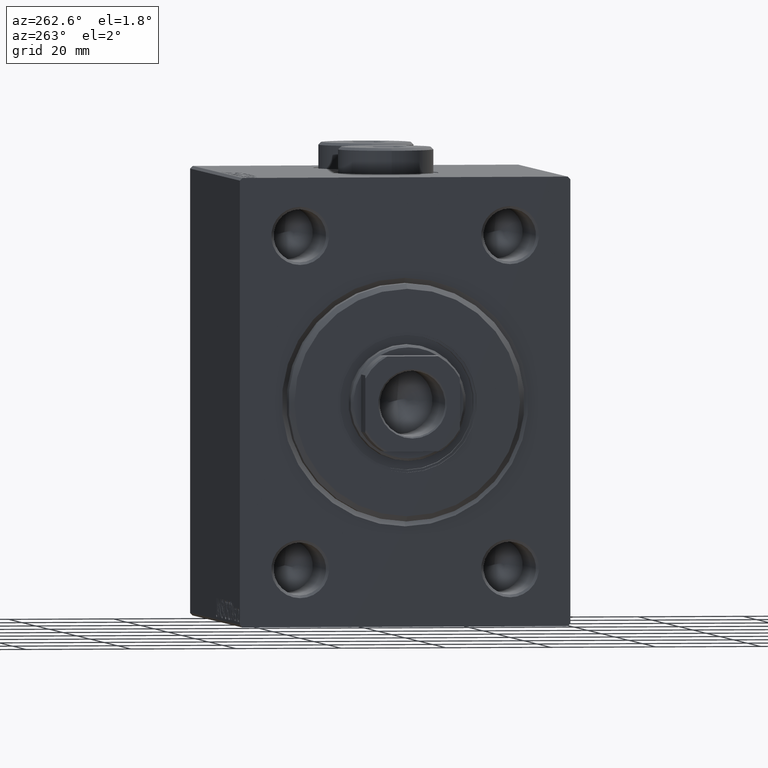
[diagram: clean part render]
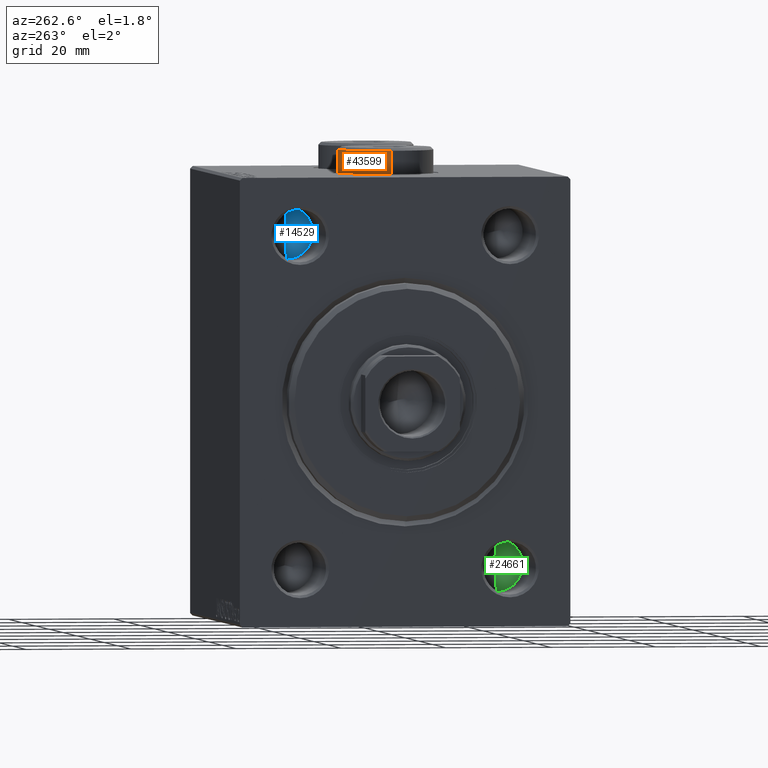
[diagram: same view with three faces highlighted in distinct colors, each labeled with its STEP entity id]
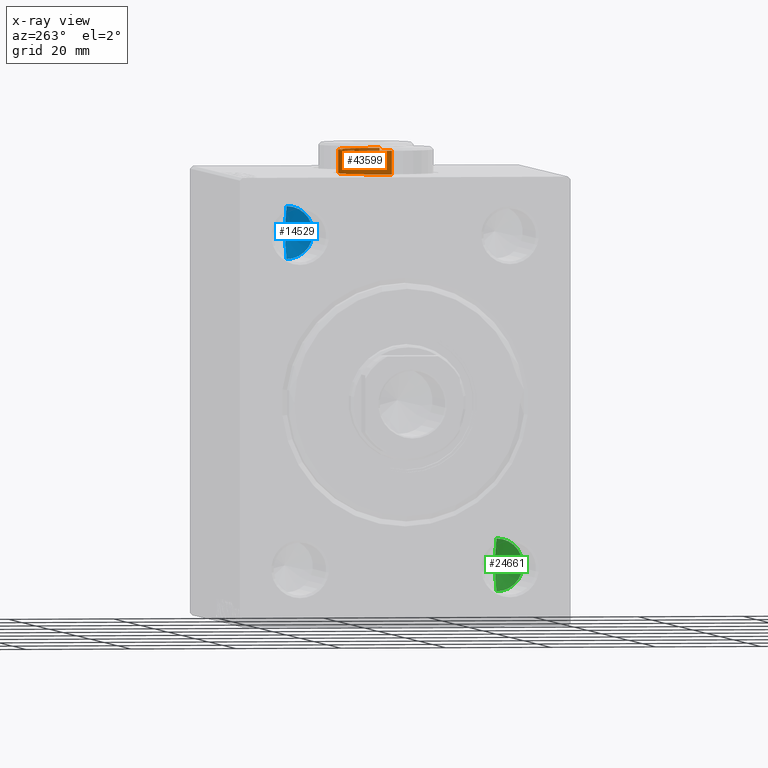
[diagram: x-ray of the same camera — body ghosted, the three highlighted faces saturated]
A machine part, auxiliary view with three faces highlighted in distinct colors.
The next image is the same camera in x-ray (body ghosted, the three faces saturated) — at least one of them is partly hidden behind the body in this view.
Their STEP definitions:

[orange] entity #43599 — the highlighted cylindrical surface (partial cylindrical patch) has radius 9 mm, axis along (-0, -0, -1).
#3591 = CYLINDRICAL_SURFACE ( 'NONE', #41357, 9.000000000000001776 ) ;
#5548 = DIRECTION ( 'NONE',  ( -0.000000000000000000, -0.000000000000000000, -1.000000000000000000 ) ) ;
#5590 = EDGE_CURVE ( 'NONE', #13046, #44027, #32014, .T. ) ;
#8040 = EDGE_CURVE ( 'NONE', #42088, #13046, #15187, .T. ) ;
#9499 = VERTEX_POINT ( 'NONE', #36355 ) ;
#9862 = DIRECTION ( 'NONE',  ( -0.000000000000000000, -0.000000000000000000, -1.000000000000000000 ) ) ;
#10482 = FACE_OUTER_BOUND ( 'NONE', #38473, .T. ) ;
#10524 = LINE ( 'NONE', #31224, #34640 ) ;
#12018 = AXIS2_PLACEMENT_3D ( 'NONE', #35029, #24248, #14118 ) ;
#13046 = VERTEX_POINT ( 'NONE', #31035 ) ;
#14118 = DIRECTION ( 'NONE',  ( 1.000000000000000000, 0.000000000000000000, 0.000000000000000000 ) ) ;
#14151 = CARTESIAN_POINT ( 'NONE',  ( 0.000000000000000000, 0.000000000000000000, 5.000000000000000000 ) ) ;
#15187 = LINE ( 'NONE', #43218, #41615 ) ;
#15690 = CARTESIAN_POINT ( 'NONE',  ( -9.000000000000001776, 0.000000000000000000, 0.000000000000000000 ) ) ;
#16299 = CARTESIAN_POINT ( 'NONE',  ( 9.000000000000001776, 1.102182119232617911E-15, 4.500000000000006217 ) ) ;
#17194 = ORIENTED_EDGE ( 'NONE', *, *, #39518, .F. ) ;
#22353 = ORIENTED_EDGE ( 'NONE', *, *, #8040, .T. ) ;
#24248 = DIRECTION ( 'NONE',  ( 0.000000000000000000, 0.000000000000000000, -1.000000000000000000 ) ) ;
#24732 = DIRECTION ( 'NONE',  ( -1.000000000000000000, 0.000000000000000000, 0.000000000000000000 ) ) ;
#25424 = AXIS2_PLACEMENT_3D ( 'NONE', #27096, #42352, #35470 ) ;
#27096 = CARTESIAN_POINT ( 'NONE',  ( 0.000000000000000000, 0.000000000000000000, 0.000000000000000000 ) ) ;
#28186 = DIRECTION ( 'NONE',  ( -0.000000000000000000, -0.000000000000000000, -1.000000000000000000 ) ) ;
#29380 = EDGE_CURVE ( 'NONE', #9499, #42088, #36217, .T. ) ;
#31035 = CARTESIAN_POINT ( 'NONE',  ( 9.000000000000001776, 1.102182119232617911E-15, 0.000000000000000000 ) ) ;
#31224 = CARTESIAN_POINT ( 'NONE',  ( -9.000000000000001776, 0.000000000000000000, 5.000000000000000000 ) ) ;
#32014 = CIRCLE ( 'NONE', #25424, 9.000000000000001776 ) ;
#32917 = ORIENTED_EDGE ( 'NONE', *, *, #29380, .T. ) ;
#34640 = VECTOR ( 'NONE', #9862, 1000.000000000000000 ) ;
#35029 = CARTESIAN_POINT ( 'NONE',  ( 0.000000000000000000, 0.000000000000000000, 4.500000000000006217 ) ) ;
#35470 = DIRECTION ( 'NONE',  ( 1.000000000000000000, 0.000000000000000000, 0.000000000000000000 ) ) ;
#36217 = CIRCLE ( 'NONE', #12018, 9.000000000000001776 ) ;
#36355 = CARTESIAN_POINT ( 'NONE',  ( -9.000000000000001776, 0.000000000000000000, 4.500000000000006217 ) ) ;
#38473 = EDGE_LOOP ( 'NONE', ( #32917, #22353, #42463, #17194 ) ) ;
#39518 = EDGE_CURVE ( 'NONE', #9499, #44027, #10524, .T. ) ;
#41357 = AXIS2_PLACEMENT_3D ( 'NONE', #14151, #28186, #24732 ) ;
#41615 = VECTOR ( 'NONE', #5548, 1000.000000000000000 ) ;
#42088 = VERTEX_POINT ( 'NONE', #16299 ) ;
#42352 = DIRECTION ( 'NONE',  ( 0.000000000000000000, 0.000000000000000000, 1.000000000000000000 ) ) ;
#42463 = ORIENTED_EDGE ( 'NONE', *, *, #5590, .T. ) ;
#43218 = CARTESIAN_POINT ( 'NONE',  ( 9.000000000000001776, 1.102182119232617911E-15, 5.000000000000000000 ) ) ;
#43599 = ADVANCED_FACE ( 'NONE', ( #10482 ), #3591, .T. ) ;
#44027 = VERTEX_POINT ( 'NONE', #15690 ) ;

[blue] entity #14529 — the highlighted conical surface has half-angle 59 deg.
#217 = VECTOR ( 'NONE', #39232, 1000.000000000000000 ) ;
#458 = CARTESIAN_POINT ( 'NONE',  ( 20.00000000000000000, 19.99999999999999645, 31.50000000000000000 ) ) ;
#2095 = CONICAL_SURFACE ( 'NONE', #45341, 4.999999999999997335, 1.029744258676653423 ) ;
#6044 = VERTEX_POINT ( 'NONE', #24422 ) ;
#14529 = ADVANCED_FACE ( 'NONE', ( #42924 ), #2095, .F. ) ;
#14533 = DIRECTION ( 'NONE',  ( 0.000000000000000000, 0.000000000000000000, 1.000000000000000000 ) ) ;
#15904 = EDGE_CURVE ( 'NONE', #42825, #19105, #28824, .T. ) ;
#17767 = CARTESIAN_POINT ( 'NONE',  ( 20.00000000000000000, 19.99999999999999645, 31.50000000000000000 ) ) ;
#19105 = VERTEX_POINT ( 'NONE', #31991 ) ;
#19880 = AXIS2_PLACEMENT_3D ( 'NONE', #17767, #42335, #14533 ) ;
#20442 = VECTOR ( 'NONE', #39147, 1000.000000000000000 ) ;
#21557 = LINE ( 'NONE', #42675, #217 ) ;
#21956 = EDGE_CURVE ( 'NONE', #6044, #19105, #33101, .T. ) ;
#22064 = CARTESIAN_POINT ( 'NONE',  ( 23.00430309513780358, 19.99999999999998934, 31.50000000000000000 ) ) ;
#23238 = ORIENTED_EDGE ( 'NONE', *, *, #25589, .T. ) ;
#24422 = CARTESIAN_POINT ( 'NONE',  ( 20.00000000000000000, 19.99999999999999645, 26.50000000000000355 ) ) ;
#25589 = EDGE_CURVE ( 'NONE', #42825, #6044, #21557, .T. ) ;
#25714 = DIRECTION ( 'NONE',  ( 0.000000000000000000, 0.000000000000000000, 1.000000000000000000 ) ) ;
#26007 = ORIENTED_EDGE ( 'NONE', *, *, #15904, .F. ) ;
#28251 = DIRECTION ( 'NONE',  ( -1.000000000000000000, -0.000000000000000000, -0.000000000000000000 ) ) ;
#28824 = LINE ( 'NONE', #32037, #20442 ) ;
#31991 = CARTESIAN_POINT ( 'NONE',  ( 20.00000000000000000, 19.99999999999999645, 36.50000000000000000 ) ) ;
#32037 = CARTESIAN_POINT ( 'NONE',  ( 20.00000000000000000, 19.99999999999999645, 36.50000000000000000 ) ) ;
#33101 = CIRCLE ( 'NONE', #19880, 4.999999999999997335 ) ;
#37462 = EDGE_LOOP ( 'NONE', ( #26007, #23238, #45132 ) ) ;
#39147 = DIRECTION ( 'NONE',  ( -0.5150380749100550437, 0.000000000000000000, 0.8571673007021117785 ) ) ;
#39232 = DIRECTION ( 'NONE',  ( -0.5150380749100550437, 1.049727191138617956E-16, -0.8571673007021117785 ) ) ;
#42335 = DIRECTION ( 'NONE',  ( -1.000000000000000000, -0.000000000000000000, -0.000000000000000000 ) ) ;
#42675 = CARTESIAN_POINT ( 'NONE',  ( 20.00000000000000000, 19.99999999999999645, 26.50000000000000355 ) ) ;
#42825 = VERTEX_POINT ( 'NONE', #22064 ) ;
#42924 = FACE_OUTER_BOUND ( 'NONE', #37462, .T. ) ;
#45132 = ORIENTED_EDGE ( 'NONE', *, *, #21956, .T. ) ;
#45341 = AXIS2_PLACEMENT_3D ( 'NONE', #458, #28251, #25714 ) ;

[green] entity #24661 — the highlighted conical surface has half-angle 59 deg.
#723 = VERTEX_POINT ( 'NONE', #8241 ) ;
#3598 = EDGE_LOOP ( 'NONE', ( #16401, #39795, #14737 ) ) ;
#4539 = CIRCLE ( 'NONE', #16314, 4.999999999999997335 ) ;
#5636 = CARTESIAN_POINT ( 'NONE',  ( 20.00000000000000000, -20.00000000000000355, -31.50000000000000000 ) ) ;
#5917 = LINE ( 'NONE', #31182, #28869 ) ;
#8241 = CARTESIAN_POINT ( 'NONE',  ( 20.00000000000000000, -20.00000000000000355, -36.50000000000000000 ) ) ;
#8272 = CARTESIAN_POINT ( 'NONE',  ( 20.00000000000000000, -20.00000000000000355, -31.50000000000000000 ) ) ;
#12066 = LINE ( 'NONE', #36194, #12524 ) ;
#12524 = VECTOR ( 'NONE', #32286, 1000.000000000000000 ) ;
#14737 = ORIENTED_EDGE ( 'NONE', *, *, #25227, .T. ) ;
#14791 = CARTESIAN_POINT ( 'NONE',  ( 20.00000000000000000, -20.00000000000000355, -26.50000000000000355 ) ) ;
#16314 = AXIS2_PLACEMENT_3D ( 'NONE', #8272, #25293, #25063 ) ;
#16401 = ORIENTED_EDGE ( 'NONE', *, *, #21694, .F. ) ;
#16924 = DIRECTION ( 'NONE',  ( -0.5150380749100552658, 1.049727191138617833E-16, -0.8571673007021116675 ) ) ;
#18767 = VERTEX_POINT ( 'NONE', #14791 ) ;
#21694 = EDGE_CURVE ( 'NONE', #30762, #18767, #12066, .T. ) ;
#22909 = AXIS2_PLACEMENT_3D ( 'NONE', #5636, #44670, #27018 ) ;
#24661 = ADVANCED_FACE ( 'NONE', ( #44454 ), #33918, .F. ) ;
#25063 = DIRECTION ( 'NONE',  ( 0.000000000000000000, 0.000000000000000000, 1.000000000000000000 ) ) ;
#25227 = EDGE_CURVE ( 'NONE', #723, #18767, #4539, .T. ) ;
#25293 = DIRECTION ( 'NONE',  ( -1.000000000000000000, -0.000000000000000000, -0.000000000000000000 ) ) ;
#27018 = DIRECTION ( 'NONE',  ( 0.000000000000000000, 0.000000000000000000, 1.000000000000000000 ) ) ;
#28869 = VECTOR ( 'NONE', #16924, 1000.000000000000000 ) ;
#30300 = CARTESIAN_POINT ( 'NONE',  ( 23.00430309513780358, -20.00000000000001066, -31.50000000000000000 ) ) ;
#30762 = VERTEX_POINT ( 'NONE', #30300 ) ;
#31182 = CARTESIAN_POINT ( 'NONE',  ( 20.00000000000000000, -20.00000000000000355, -36.50000000000000000 ) ) ;
#32286 = DIRECTION ( 'NONE',  ( -0.5150380749100552658, 0.000000000000000000, 0.8571673007021116675 ) ) ;
#33918 = CONICAL_SURFACE ( 'NONE', #22909, 4.999999999999997335, 1.029744258676653201 ) ;
#36194 = CARTESIAN_POINT ( 'NONE',  ( 20.00000000000000000, -20.00000000000000355, -26.50000000000000355 ) ) ;
#39795 = ORIENTED_EDGE ( 'NONE', *, *, #43392, .T. ) ;
#43392 = EDGE_CURVE ( 'NONE', #30762, #723, #5917, .T. ) ;
#44454 = FACE_OUTER_BOUND ( 'NONE', #3598, .T. ) ;
#44670 = DIRECTION ( 'NONE',  ( -1.000000000000000000, -0.000000000000000000, -0.000000000000000000 ) ) ;